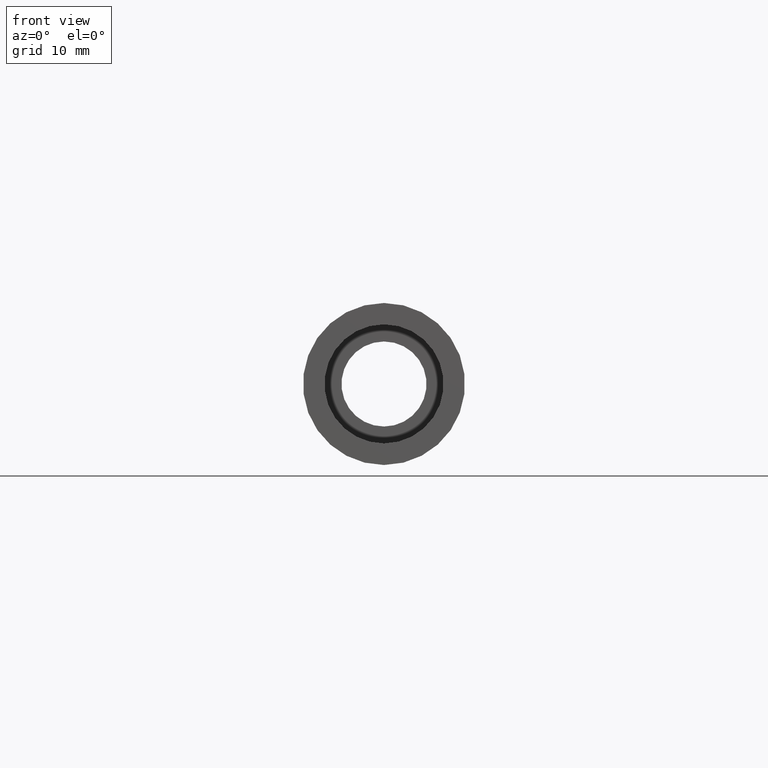
[diagram: clean part render]
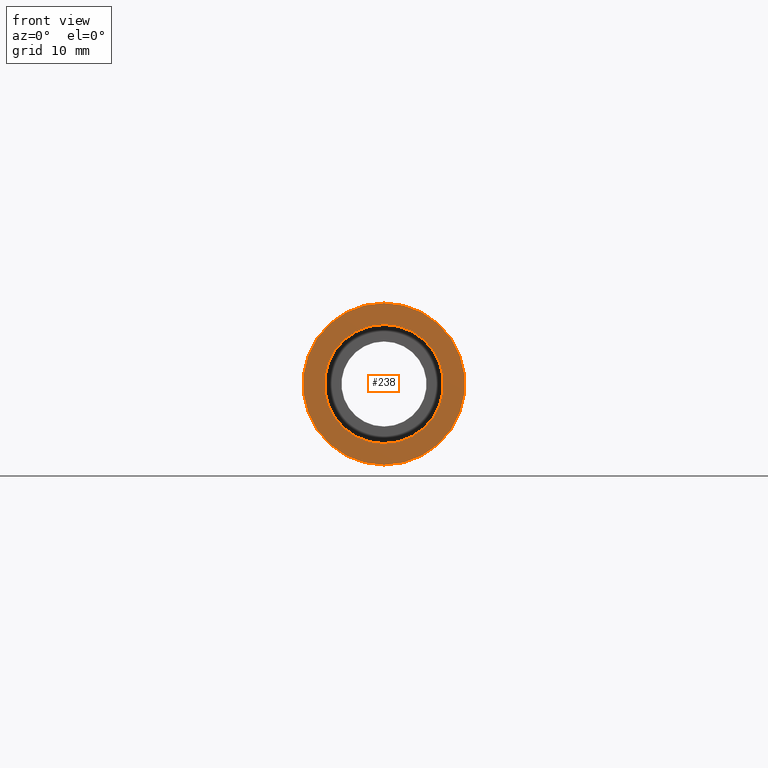
[diagram: same view with one face highlighted and labeled with its STEP entity id]
A machine part, front view. The second image highlights one B-rep face of the part: STEP entity #238.
In plain terms, the highlighted planar face has unit normal (-0, 1, 0).
Its self-contained STEP definition (entity closure, byte-faithful):
#1 = FACE_OUTER_BOUND ( 'NONE', #246, .T. ) ;
#4 = VERTEX_POINT ( 'NONE', #10 ) ;
#10 = CARTESIAN_POINT ( 'NONE',  ( 0.0000000000000000000, -2.775557561562891400E-014, 9.525000000000019900 ) ) ;
#21 = ORIENTED_EDGE ( 'NONE', *, *, #509, .F. ) ;
#23 = CARTESIAN_POINT ( 'NONE',  ( 7.000000000000020400, -1.634585625335647100E-014, 0.0000000000000000000 ) ) ;
#27 = DIRECTION ( 'NONE',  ( -0.0000000000000000000, 1.000000000000000000, -0.0000000000000000000 ) ) ;
#46 = ORIENTED_EDGE ( 'NONE', *, *, #595, .T. ) ;
#70 = CARTESIAN_POINT ( 'NONE',  ( 0.0000000000000000000, -2.775557561562891400E-014, 0.0000000000000000000 ) ) ;
#94 = DIRECTION ( 'NONE',  ( 0.0000000000000000000, 0.0000000000000000000, 1.000000000000000000 ) ) ;
#127 = VERTEX_POINT ( 'NONE', #580 ) ;
#157 = DIRECTION ( 'NONE',  ( 0.0000000000000000000, 0.0000000000000000000, 1.000000000000000000 ) ) ;
#199 = CIRCLE ( 'NONE', #464, 7.000000000000020400 ) ;
#223 = CARTESIAN_POINT ( 'NONE',  ( 0.0000000000000000000, -2.775557561562891400E-014, 0.0000000000000000000 ) ) ;
#225 = CARTESIAN_POINT ( 'NONE',  ( 1.166476076187856400E-015, -2.775557561562891400E-014, -9.525000000000019900 ) ) ;
#227 = DIRECTION ( 'NONE',  ( -0.0000000000000000000, 1.000000000000000000, -0.0000000000000000000 ) ) ;
#238 = ADVANCED_FACE ( 'NONE', ( #1, #466 ), #301, .F. ) ;
#244 = AXIS2_PLACEMENT_3D ( 'NONE', #70, #227, #157 ) ;
#246 = EDGE_LOOP ( 'NONE', ( #370, #21 ) ) ;
#288 = EDGE_LOOP ( 'NONE', ( #46, #487 ) ) ;
#299 = EDGE_CURVE ( 'NONE', #127, #312, #353, .T. ) ;
#301 = PLANE ( 'NONE',  #504 ) ;
#312 = VERTEX_POINT ( 'NONE', #419 ) ;
#353 = CIRCLE ( 'NONE', #412, 7.000000000000020400 ) ;
#361 = DIRECTION ( 'NONE',  ( 0.0000000000000000000, 0.0000000000000000000, 1.000000000000000000 ) ) ;
#370 = ORIENTED_EDGE ( 'NONE', *, *, #456, .F. ) ;
#381 = VERTEX_POINT ( 'NONE', #225 ) ;
#412 = AXIS2_PLACEMENT_3D ( 'NONE', #223, #27, #608 ) ;
#413 = DIRECTION ( 'NONE',  ( 0.0000000000000000000, 0.0000000000000000000, 1.000000000000000000 ) ) ;
#419 = CARTESIAN_POINT ( 'NONE',  ( 0.0000000000000000000, -2.775557561562891400E-014, 7.000000000000020400 ) ) ;
#451 = CIRCLE ( 'NONE', #244, 9.525000000000019900 ) ;
#455 = DIRECTION ( 'NONE',  ( -0.0000000000000000000, 1.000000000000000000, 0.0000000000000000000 ) ) ;
#456 = EDGE_CURVE ( 'NONE', #4, #381, #564, .T. ) ;
#464 = AXIS2_PLACEMENT_3D ( 'NONE', #587, #596, #361 ) ;
#465 = DIRECTION ( 'NONE',  ( -0.0000000000000000000, 1.000000000000000000, -0.0000000000000000000 ) ) ;
#466 = FACE_BOUND ( 'NONE', #288, .T. ) ;
#470 = CARTESIAN_POINT ( 'NONE',  ( 0.0000000000000000000, -2.775557561562891400E-014, 0.0000000000000000000 ) ) ;
#487 = ORIENTED_EDGE ( 'NONE', *, *, #299, .T. ) ;
#504 = AXIS2_PLACEMENT_3D ( 'NONE', #23, #455, #413 ) ;
#509 = EDGE_CURVE ( 'NONE', #381, #4, #451, .T. ) ;
#564 = CIRCLE ( 'NONE', #600, 9.525000000000019900 ) ;
#580 = CARTESIAN_POINT ( 'NONE',  ( 8.572527594031496900E-016, -2.775557561562891400E-014, -7.000000000000020400 ) ) ;
#587 = CARTESIAN_POINT ( 'NONE',  ( 0.0000000000000000000, -2.775557561562891400E-014, 0.0000000000000000000 ) ) ;
#595 = EDGE_CURVE ( 'NONE', #312, #127, #199, .T. ) ;
#596 = DIRECTION ( 'NONE',  ( -0.0000000000000000000, 1.000000000000000000, -0.0000000000000000000 ) ) ;
#600 = AXIS2_PLACEMENT_3D ( 'NONE', #470, #465, #94 ) ;
#608 = DIRECTION ( 'NONE',  ( 0.0000000000000000000, 0.0000000000000000000, 1.000000000000000000 ) ) ;